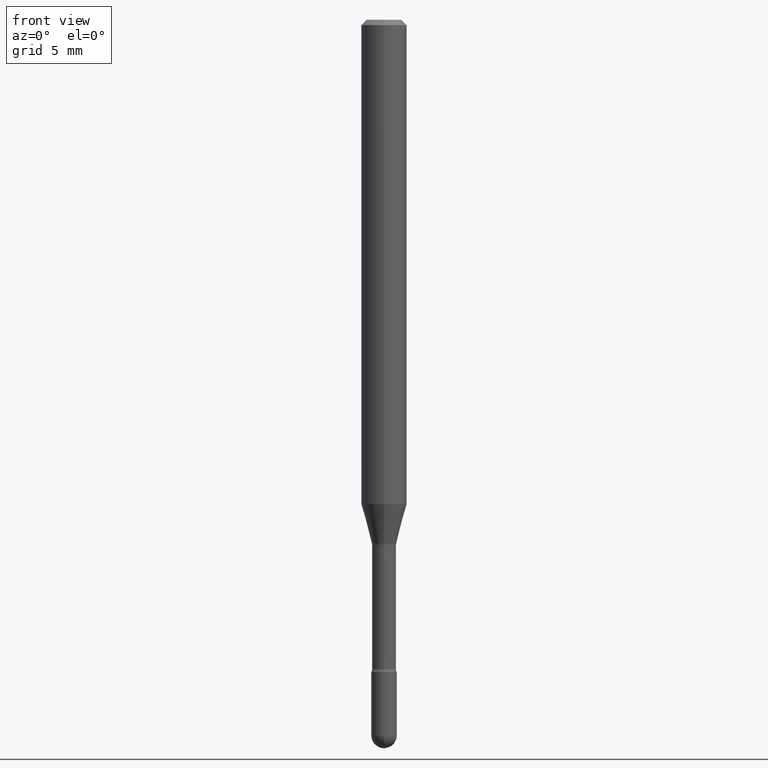
[diagram: clean part render]
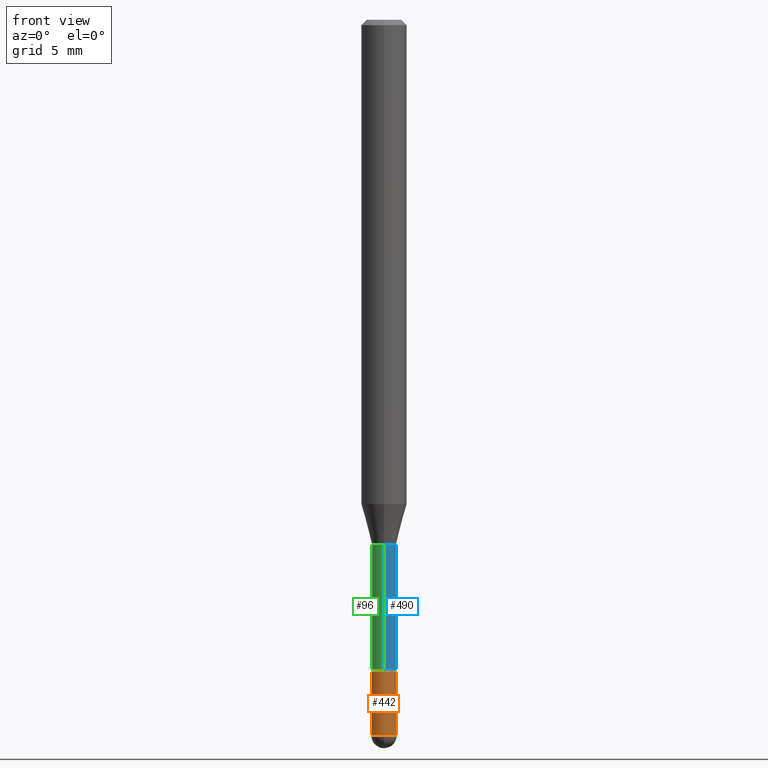
[diagram: same view with three faces highlighted in distinct colors, each labeled with its STEP entity id]
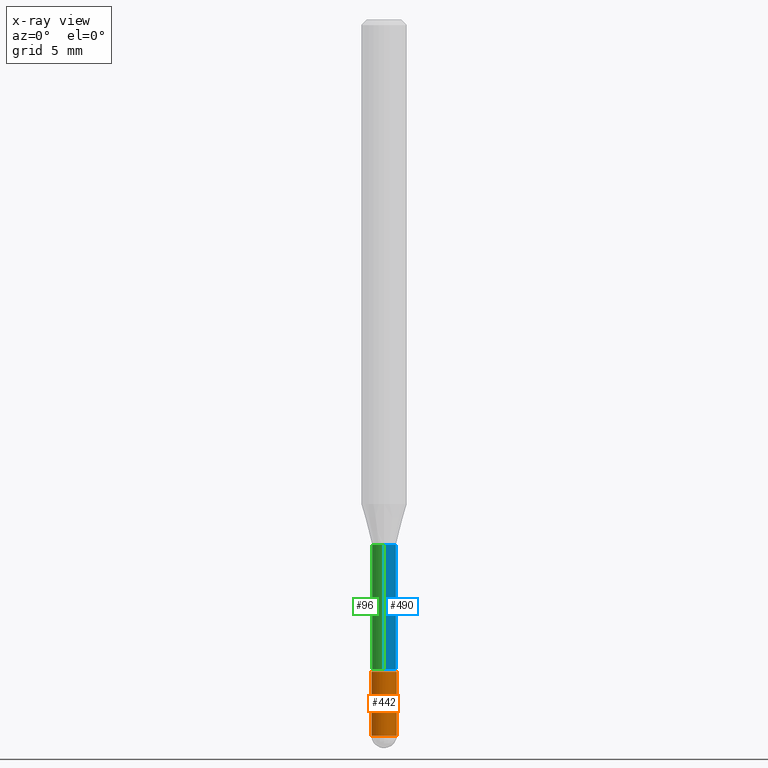
[diagram: x-ray of the same camera — body ghosted, the three highlighted faces saturated]
A machine part, front view with three faces highlighted in distinct colors.
The next image is the same camera in x-ray (body ghosted, the three faces saturated) — at least one of them is partly hidden behind the body in this view.
Their STEP definitions:

[orange] entity #442 — the highlighted cylindrical surface (edge-blend (fillet) strip) has radius 0.889 mm, axis along (-0, 0, 1).
#14 = VERTEX_POINT ( 'NONE', #250 ) ;
#17 = FACE_OUTER_BOUND ( 'NONE', #404, .T. ) ;
#31 = LINE ( 'NONE', #344, #163 ) ;
#38 = CIRCLE ( 'NONE', #536, 0.03500000000000000333 ) ;
#69 = EDGE_CURVE ( 'NONE', #410, #367, #369, .T. ) ;
#75 = CARTESIAN_POINT ( 'NONE',  ( 4.805346204153793345E-29, -6.860760830826780393E-15, -1.964999999999999858 ) ) ;
#77 = CARTESIAN_POINT ( 'NONE',  ( 4.377389163071394665E-29, -6.249751596529231267E-15, -1.790000000000000036 ) ) ;
#108 = AXIS2_PLACEMENT_3D ( 'NONE', #135, #449, #412 ) ;
#110 = DIRECTION ( 'NONE',  ( -2.445468806185136877E-29, 3.491481338843145188E-15, 1.000000000000000000 ) ) ;
#119 = LINE ( 'NONE', #125, #420 ) ;
#125 = CARTESIAN_POINT ( 'NONE',  ( 0.03500000000000000333, -2.444036937190193250E-16, 1.706661871528577808E-30 ) ) ;
#135 = CARTESIAN_POINT ( 'NONE',  ( 0.000000000000000000, 0.000000000000000000, 0.000000000000000000 ) ) ;
#140 = AXIS2_PLACEMENT_3D ( 'NONE', #75, #403, #232 ) ;
#145 = EDGE_CURVE ( 'NONE', #410, #492, #31, .T. ) ;
#163 = VECTOR ( 'NONE', #110, 39.37007874015748143 ) ;
#186 = VERTEX_POINT ( 'NONE', #509 ) ;
#195 = DIRECTION ( 'NONE',  ( -2.445468806185136597E-29, 3.491481338843145583E-15, 1.000000000000000000 ) ) ;
#198 = CARTESIAN_POINT ( 'NONE',  ( -0.03500000000000000333, -6.306566256161970939E-15, -1.790000000000000036 ) ) ;
#204 = AXIS2_PLACEMENT_3D ( 'NONE', #396, #302, #483 ) ;
#232 = DIRECTION ( 'NONE',  ( 1.000000000000000000, -6.982962677686276966E-15, 0.000000000000000000 ) ) ;
#233 = CARTESIAN_POINT ( 'NONE',  ( -0.03500000000000000333, -6.306566256161970939E-15, -1.964999999999999858 ) ) ;
#250 = CARTESIAN_POINT ( 'NONE',  ( 0.03500000000000000333, -6.799659907397025402E-15, -1.964999999999999858 ) ) ;
#253 = DIRECTION ( 'NONE',  ( 1.000000000000000000, -6.982962677686276966E-15, 0.000000000000000000 ) ) ;
#274 = CARTESIAN_POINT ( 'NONE',  ( -2.486899575159870668E-16, -0.03500000000000687284, -1.964999999999999858 ) ) ;
#297 = ORIENTED_EDGE ( 'NONE', *, *, #300, .T. ) ;
#300 = EDGE_CURVE ( 'NONE', #14, #186, #119, .T. ) ;
#302 = DIRECTION ( 'NONE',  ( -2.445468806185136597E-29, 3.491481338843145583E-15, 1.000000000000000000 ) ) ;
#305 = EDGE_CURVE ( 'NONE', #367, #14, #391, .T. ) ;
#312 = DIRECTION ( 'NONE',  ( -2.445468806185136877E-29, 3.491481338843145188E-15, 1.000000000000000000 ) ) ;
#344 = CARTESIAN_POINT ( 'NONE',  ( -0.03500000000000000333, 2.486899575160350887E-16, -1.721627281589217108E-30 ) ) ;
#362 = CYLINDRICAL_SURFACE ( 'NONE', #108, 0.03500000000000000333 ) ;
#367 = VERTEX_POINT ( 'NONE', #274 ) ;
#369 = CIRCLE ( 'NONE', #140, 0.03500000000000000333 ) ;
#387 = ORIENTED_EDGE ( 'NONE', *, *, #145, .F. ) ;
#391 = CIRCLE ( 'NONE', #204, 0.03500000000000000333 ) ;
#396 = CARTESIAN_POINT ( 'NONE',  ( 4.805346204153793345E-29, -6.860760830826780393E-15, -1.964999999999999858 ) ) ;
#403 = DIRECTION ( 'NONE',  ( -2.445468806185136597E-29, 3.491481338843145583E-15, 1.000000000000000000 ) ) ;
#404 = EDGE_LOOP ( 'NONE', ( #387, #455, #561, #297, #555 ) ) ;
#410 = VERTEX_POINT ( 'NONE', #233 ) ;
#412 = DIRECTION ( 'NONE',  ( 1.000000000000000000, -6.982962677686265922E-15, 4.876176775795936353E-29 ) ) ;
#420 = VECTOR ( 'NONE', #312, 39.37007874015748143 ) ;
#442 = ADVANCED_FACE ( 'NONE', ( #17 ), #362, .T. ) ;
#449 = DIRECTION ( 'NONE',  ( -2.445468806185136597E-29, 3.491481338843145583E-15, 1.000000000000000000 ) ) ;
#455 = ORIENTED_EDGE ( 'NONE', *, *, #69, .T. ) ;
#483 = DIRECTION ( 'NONE',  ( 1.000000000000000000, -6.982962677686276966E-15, 0.000000000000000000 ) ) ;
#492 = VERTEX_POINT ( 'NONE', #198 ) ;
#509 = CARTESIAN_POINT ( 'NONE',  ( 0.03500000000000000333, -6.494155290248250444E-15, -1.790000000000000036 ) ) ;
#529 = EDGE_CURVE ( 'NONE', #492, #186, #38, .T. ) ;
#536 = AXIS2_PLACEMENT_3D ( 'NONE', #77, #195, #253 ) ;
#555 = ORIENTED_EDGE ( 'NONE', *, *, #529, .F. ) ;
#561 = ORIENTED_EDGE ( 'NONE', *, *, #305, .T. ) ;

[blue] entity #490 — the highlighted cylindrical surface (edge-blend (fillet) strip) has radius 0.8357 mm, axis along (-0, 0, 1).
#23 = FACE_OUTER_BOUND ( 'NONE', #474, .T. ) ;
#24 = VERTEX_POINT ( 'NONE', #345 ) ;
#49 = AXIS2_PLACEMENT_3D ( 'NONE', #415, #368, #193 ) ;
#54 = DIRECTION ( 'NONE',  ( -2.445497683573463397E-29, 3.491439984779462686E-15, 1.000000000000000000 ) ) ;
#63 = ORIENTED_EDGE ( 'NONE', *, *, #395, .F. ) ;
#87 = DIRECTION ( 'NONE',  ( -2.445497683573463397E-29, 3.491439984779462686E-15, 1.000000000000000000 ) ) ;
#89 = CARTESIAN_POINT ( 'NONE',  ( -2.297394720958349133E-16, -0.03290000000000627145, -1.782345589506696193 ) ) ;
#98 = VERTEX_POINT ( 'NONE', #430 ) ;
#100 = LINE ( 'NONE', #500, #487 ) ;
#121 = DIRECTION ( 'NONE',  ( -2.445497683573463397E-29, 3.491439984779462686E-15, 1.000000000000000000 ) ) ;
#139 = ORIENTED_EDGE ( 'NONE', *, *, #165, .T. ) ;
#152 = AXIS2_PLACEMENT_3D ( 'NONE', #397, #121, #308 ) ;
#165 = EDGE_CURVE ( 'NONE', #24, #282, #557, .T. ) ;
#169 = CARTESIAN_POINT ( 'NONE',  ( 2.337685600651166350E-16, 0.03289999999999496105, -1.441974787463811136 ) ) ;
#193 = DIRECTION ( 'NONE',  ( -6.982962677686266711E-15, -1.000000000000000000, 3.491439984779464658E-15 ) ) ;
#226 = ORIENTED_EDGE ( 'NONE', *, *, #272, .F. ) ;
#235 = CYLINDRICAL_SURFACE ( 'NONE', #49, 0.03290000000000001951 ) ;
#255 = EDGE_CURVE ( 'NONE', #325, #24, #427, .T. ) ;
#272 = EDGE_CURVE ( 'NONE', #98, #282, #371, .T. ) ;
#282 = VERTEX_POINT ( 'NONE', #169 ) ;
#298 = AXIS2_PLACEMENT_3D ( 'NONE', #355, #87, #434 ) ;
#308 = DIRECTION ( 'NONE',  ( -6.982962677686266711E-15, -1.000000000000000000, 0.000000000000000000 ) ) ;
#325 = VERTEX_POINT ( 'NONE', #89 ) ;
#345 = CARTESIAN_POINT ( 'NONE',  ( 2.412292587905979007E-16, 0.03289999999999382307, -1.782345589506696193 ) ) ;
#355 = CARTESIAN_POINT ( 'NONE',  ( 3.526346002514087229E-29, -5.034568429995017918E-15, -1.441974787463811136 ) ) ;
#368 = DIRECTION ( 'NONE',  ( -2.445497683573463397E-29, 3.491439984779462686E-15, 1.000000000000000000 ) ) ;
#371 = CIRCLE ( 'NONE', #298, 0.03289999999999999869 ) ;
#386 = CARTESIAN_POINT ( 'NONE',  ( 2.337685600650730998E-16, 0.03290000000000001951, 3.632050233920016564E-16 ) ) ;
#395 = EDGE_CURVE ( 'NONE', #325, #98, #100, .T. ) ;
#397 = CARTESIAN_POINT ( 'NONE',  ( 4.358722010466005313E-29, -6.222952657899001696E-15, -1.782345589506696193 ) ) ;
#415 = CARTESIAN_POINT ( 'NONE',  ( -1.169113584055446105E-44, 1.669184350826100908E-30, 4.780733988912460139E-16 ) ) ;
#427 = CIRCLE ( 'NONE', #152, 0.03290000000000004726 ) ;
#430 = CARTESIAN_POINT ( 'NONE',  ( -2.297394720958428512E-16, -0.03290000000000502939, -1.441974787463811136 ) ) ;
#434 = DIRECTION ( 'NONE',  ( -6.982962677686265133E-15, -1.000000000000000000, 0.000000000000000000 ) ) ;
#462 = VECTOR ( 'NONE', #481, 39.37007874015748143 ) ;
#474 = EDGE_LOOP ( 'NONE', ( #489, #139, #226, #63 ) ) ;
#481 = DIRECTION ( 'NONE',  ( -2.445497683573463397E-29, 3.491439984779462686E-15, 1.000000000000000000 ) ) ;
#487 = VECTOR ( 'NONE', #54, 39.37007874015748143 ) ;
#489 = ORIENTED_EDGE ( 'NONE', *, *, #255, .T. ) ;
#490 = ADVANCED_FACE ( 'NONE', ( #23 ), #235, .T. ) ;
#500 = CARTESIAN_POINT ( 'NONE',  ( -2.297394720958783006E-16, -0.03290000000000001951, 5.929417743904905687E-16 ) ) ;
#557 = LINE ( 'NONE', #386, #462 ) ;

[green] entity #96 — the highlighted cylindrical surface (edge-blend (fillet) strip) has radius 0.8357 mm, axis along (-0, 0, 1).
#24 = VERTEX_POINT ( 'NONE', #345 ) ;
#33 = ORIENTED_EDGE ( 'NONE', *, *, #165, .F. ) ;
#54 = DIRECTION ( 'NONE',  ( -2.445497683573463397E-29, 3.491439984779462686E-15, 1.000000000000000000 ) ) ;
#59 = EDGE_LOOP ( 'NONE', ( #33, #270, #546, #452 ) ) ;
#71 = DIRECTION ( 'NONE',  ( -6.982962677686266711E-15, -1.000000000000000000, 0.000000000000000000 ) ) ;
#81 = CARTESIAN_POINT ( 'NONE',  ( 4.358722010466005313E-29, -6.222952657899001696E-15, -1.782345589506696193 ) ) ;
#89 = CARTESIAN_POINT ( 'NONE',  ( -2.297394720958349133E-16, -0.03290000000000627145, -1.782345589506696193 ) ) ;
#96 = ADVANCED_FACE ( 'NONE', ( #347 ), #514, .T. ) ;
#98 = VERTEX_POINT ( 'NONE', #430 ) ;
#100 = LINE ( 'NONE', #500, #487 ) ;
#165 = EDGE_CURVE ( 'NONE', #24, #282, #557, .T. ) ;
#169 = CARTESIAN_POINT ( 'NONE',  ( 2.337685600651166350E-16, 0.03289999999999496105, -1.441974787463811136 ) ) ;
#178 = CIRCLE ( 'NONE', #435, 0.03290000000000004726 ) ;
#181 = EDGE_CURVE ( 'NONE', #24, #325, #178, .T. ) ;
#257 = DIRECTION ( 'NONE',  ( -6.982962677686266711E-15, -1.000000000000000000, 3.491439984779464658E-15 ) ) ;
#270 = ORIENTED_EDGE ( 'NONE', *, *, #181, .T. ) ;
#282 = VERTEX_POINT ( 'NONE', #169 ) ;
#318 = AXIS2_PLACEMENT_3D ( 'NONE', #515, #375, #332 ) ;
#325 = VERTEX_POINT ( 'NONE', #89 ) ;
#332 = DIRECTION ( 'NONE',  ( -6.982962677686265133E-15, -1.000000000000000000, 0.000000000000000000 ) ) ;
#345 = CARTESIAN_POINT ( 'NONE',  ( 2.412292587905979007E-16, 0.03289999999999382307, -1.782345589506696193 ) ) ;
#347 = FACE_OUTER_BOUND ( 'NONE', #59, .T. ) ;
#375 = DIRECTION ( 'NONE',  ( -2.445497683573463397E-29, 3.491439984779462686E-15, 1.000000000000000000 ) ) ;
#386 = CARTESIAN_POINT ( 'NONE',  ( 2.337685600650730998E-16, 0.03290000000000001951, 3.632050233920016564E-16 ) ) ;
#395 = EDGE_CURVE ( 'NONE', #325, #98, #100, .T. ) ;
#430 = CARTESIAN_POINT ( 'NONE',  ( -2.297394720958428512E-16, -0.03290000000000502939, -1.441974787463811136 ) ) ;
#435 = AXIS2_PLACEMENT_3D ( 'NONE', #81, #553, #71 ) ;
#452 = ORIENTED_EDGE ( 'NONE', *, *, #552, .F. ) ;
#462 = VECTOR ( 'NONE', #481, 39.37007874015748143 ) ;
#481 = DIRECTION ( 'NONE',  ( -2.445497683573463397E-29, 3.491439984779462686E-15, 1.000000000000000000 ) ) ;
#487 = VECTOR ( 'NONE', #54, 39.37007874015748143 ) ;
#496 = CIRCLE ( 'NONE', #318, 0.03289999999999999869 ) ;
#500 = CARTESIAN_POINT ( 'NONE',  ( -2.297394720958783006E-16, -0.03290000000000001951, 5.929417743904905687E-16 ) ) ;
#514 = CYLINDRICAL_SURFACE ( 'NONE', #522, 0.03290000000000001951 ) ;
#515 = CARTESIAN_POINT ( 'NONE',  ( 3.526346002514087229E-29, -5.034568429995017918E-15, -1.441974787463811136 ) ) ;
#520 = DIRECTION ( 'NONE',  ( -2.445497683573463397E-29, 3.491439984779462686E-15, 1.000000000000000000 ) ) ;
#522 = AXIS2_PLACEMENT_3D ( 'NONE', #565, #520, #257 ) ;
#546 = ORIENTED_EDGE ( 'NONE', *, *, #395, .T. ) ;
#552 = EDGE_CURVE ( 'NONE', #282, #98, #496, .T. ) ;
#553 = DIRECTION ( 'NONE',  ( -2.445497683573463397E-29, 3.491439984779462686E-15, 1.000000000000000000 ) ) ;
#557 = LINE ( 'NONE', #386, #462 ) ;
#565 = CARTESIAN_POINT ( 'NONE',  ( -1.169113584055446105E-44, 1.669184350826100908E-30, 4.780733988912460139E-16 ) ) ;